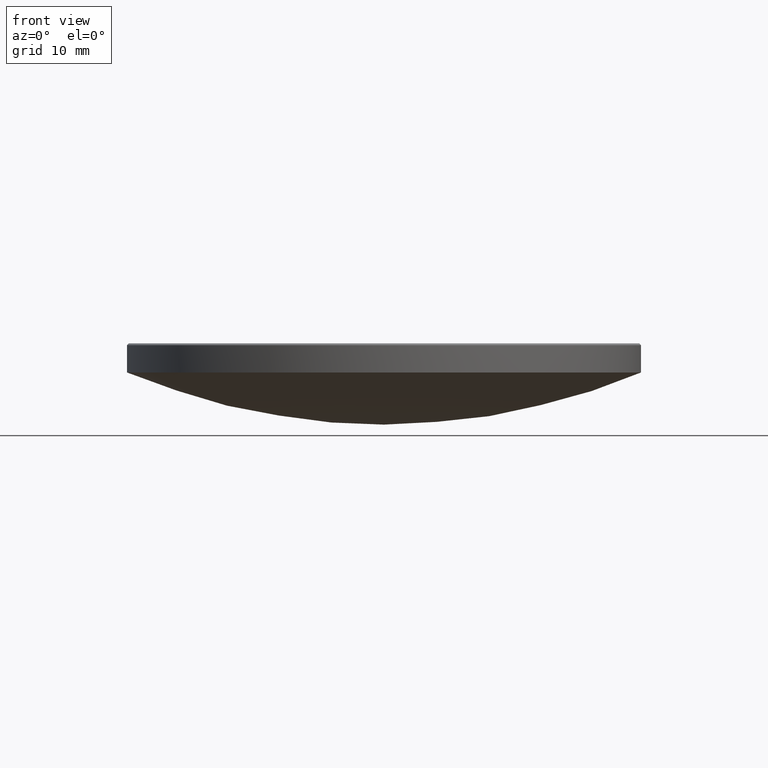
[diagram: clean part render]
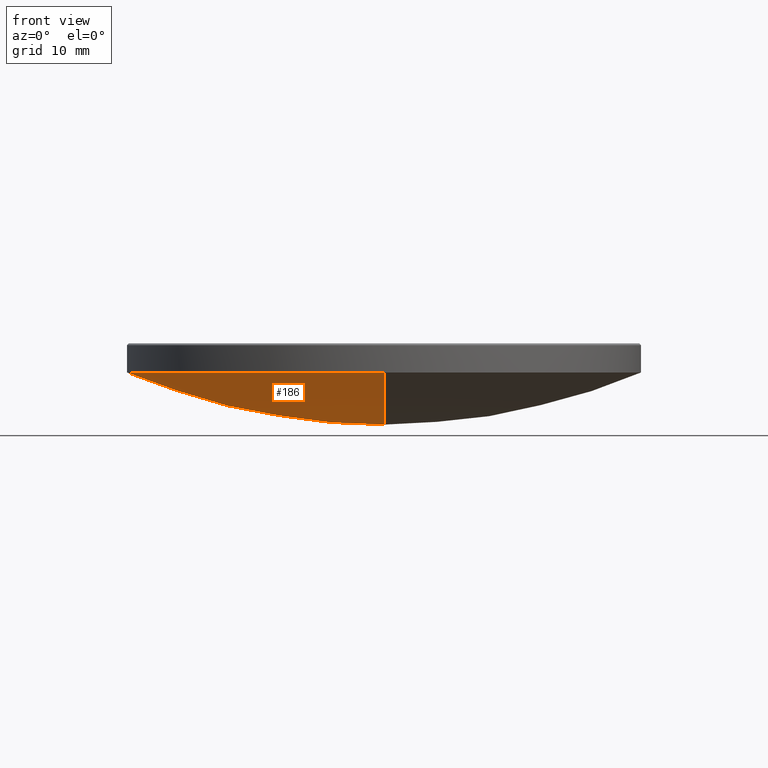
[diagram: same view with one face highlighted and labeled with its STEP entity id]
A machine part, front view. The second image highlights one B-rep face of the part: STEP entity #186.
In plain terms, the highlighted spherical surface has radius 65.16 mm.
Its self-contained STEP definition (entity closure, byte-faithful):
#4 = DIRECTION ( 'NONE',  ( 0.000000000000000000, 1.000000000000000000, 0.000000000000000000 ) ) ;
#6 = CARTESIAN_POINT ( 'NONE',  ( 0.000000000000000000, 0.000000000000000000, 13.00000000000000000 ) ) ;
#9 = AXIS2_PLACEMENT_3D ( 'NONE', #42, #233, #34 ) ;
#26 = CARTESIAN_POINT ( 'NONE',  ( -3.110602869834275682E-15, -25.39999999999998437, 12.99999999999999822 ) ) ;
#28 = DIRECTION ( 'NONE',  ( -0.000000000000000000, -0.000000000000000000, 1.000000000000000000 ) ) ;
#31 = AXIS2_PLACEMENT_3D ( 'NONE', #175, #81, #182 ) ;
#34 = DIRECTION ( 'NONE',  ( 0.000000000000000000, 0.000000000000000000, -1.000000000000000000 ) ) ;
#39 = AXIS2_PLACEMENT_3D ( 'NONE', #149, #277, #166 ) ;
#41 = VERTEX_POINT ( 'NONE', #90 ) ;
#42 = CARTESIAN_POINT ( 'NONE',  ( 0.000000000000000000, 0.000000000000000000, 73.00554641031111203 ) ) ;
#43 = CIRCLE ( 'NONE', #83, 25.39999999999999503 ) ;
#46 = FACE_OUTER_BOUND ( 'NONE', #143, .T. ) ;
#75 = ORIENTED_EDGE ( 'NONE', *, *, #257, .F. ) ;
#77 = ORIENTED_EDGE ( 'NONE', *, *, #86, .T. ) ;
#81 = DIRECTION ( 'NONE',  ( -0.000000000000000000, -0.000000000000000000, 1.000000000000000000 ) ) ;
#82 = DIRECTION ( 'NONE',  ( -1.000000000000000000, 0.000000000000000000, 0.000000000000000000 ) ) ;
#83 = AXIS2_PLACEMENT_3D ( 'NONE', #6, #28, #152 ) ;
#84 = AXIS2_PLACEMENT_3D ( 'NONE', #203, #82, #4 ) ;
#86 = EDGE_CURVE ( 'NONE', #41, #194, #122, .T. ) ;
#90 = CARTESIAN_POINT ( 'NONE',  ( 0.000000000000000000, 3.989899271622076049E-15, 7.845546410311113661 ) ) ;
#91 = VERTEX_POINT ( 'NONE', #94 ) ;
#94 = CARTESIAN_POINT ( 'NONE',  ( -25.39999999999999503, 0.000000000000000000, 13.00000000000000000 ) ) ;
#107 = CIRCLE ( 'NONE', #31, 25.39999999999999503 ) ;
#122 = CIRCLE ( 'NONE', #39, 65.15999999999999659 ) ;
#135 = CIRCLE ( 'NONE', #9, 65.15999999999999659 ) ;
#143 = EDGE_LOOP ( 'NONE', ( #168, #77, #75, #282 ) ) ;
#149 = CARTESIAN_POINT ( 'NONE',  ( 0.000000000000000000, 0.000000000000000000, 73.00554641031111203 ) ) ;
#152 = DIRECTION ( 'NONE',  ( 1.000000000000000000, 0.000000000000000000, 0.000000000000000000 ) ) ;
#156 = EDGE_CURVE ( 'NONE', #41, #240, #135, .T. ) ;
#166 = DIRECTION ( 'NONE',  ( -1.224646799147352961E-16, -1.000000000000000000, 0.000000000000000000 ) ) ;
#168 = ORIENTED_EDGE ( 'NONE', *, *, #156, .F. ) ;
#175 = CARTESIAN_POINT ( 'NONE',  ( 0.000000000000000000, 0.000000000000000000, 13.00000000000000000 ) ) ;
#182 = DIRECTION ( 'NONE',  ( 1.000000000000000000, 0.000000000000000000, 0.000000000000000000 ) ) ;
#186 = ADVANCED_FACE ( 'NONE', ( #46 ), #246, .T. ) ;
#194 = VERTEX_POINT ( 'NONE', #26 ) ;
#203 = CARTESIAN_POINT ( 'NONE',  ( 0.000000000000000000, 0.000000000000000000, 73.00554641031111203 ) ) ;
#225 = CARTESIAN_POINT ( 'NONE',  ( 0.000000000000000000, 25.39999999999998437, 12.99999999999999822 ) ) ;
#233 = DIRECTION ( 'NONE',  ( 1.000000000000000000, -0.000000000000000000, 0.000000000000000000 ) ) ;
#240 = VERTEX_POINT ( 'NONE', #225 ) ;
#246 = SPHERICAL_SURFACE ( 'NONE', #84, 65.15999999999999659 ) ;
#257 = EDGE_CURVE ( 'NONE', #91, #194, #43, .T. ) ;
#271 = EDGE_CURVE ( 'NONE', #240, #91, #107, .T. ) ;
#277 = DIRECTION ( 'NONE',  ( -1.000000000000000000, 1.224646799147353207E-16, 0.000000000000000000 ) ) ;
#282 = ORIENTED_EDGE ( 'NONE', *, *, #271, .F. ) ;